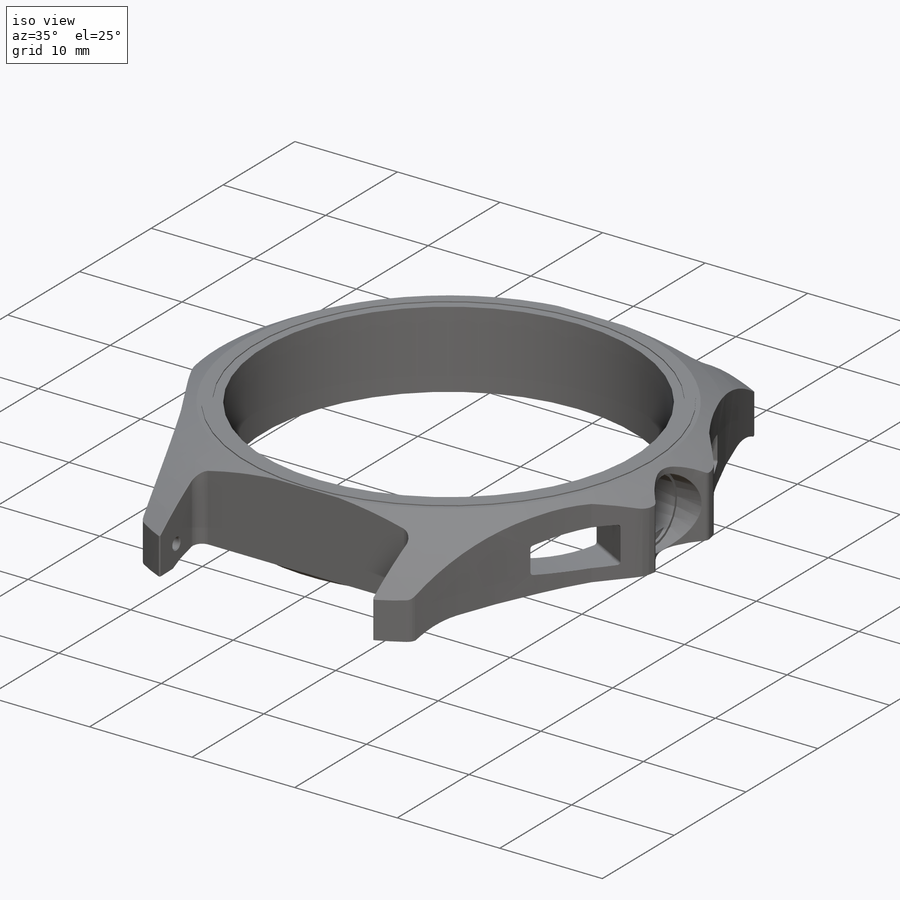
[diagram: iso view]
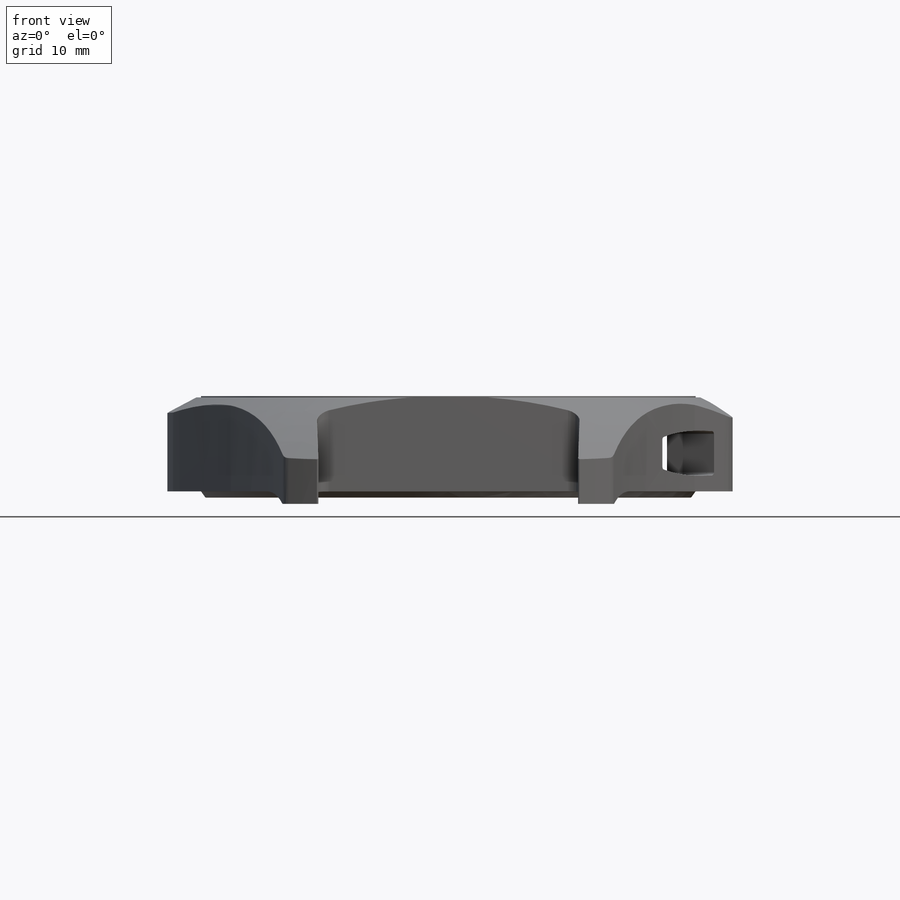
[diagram: front view]
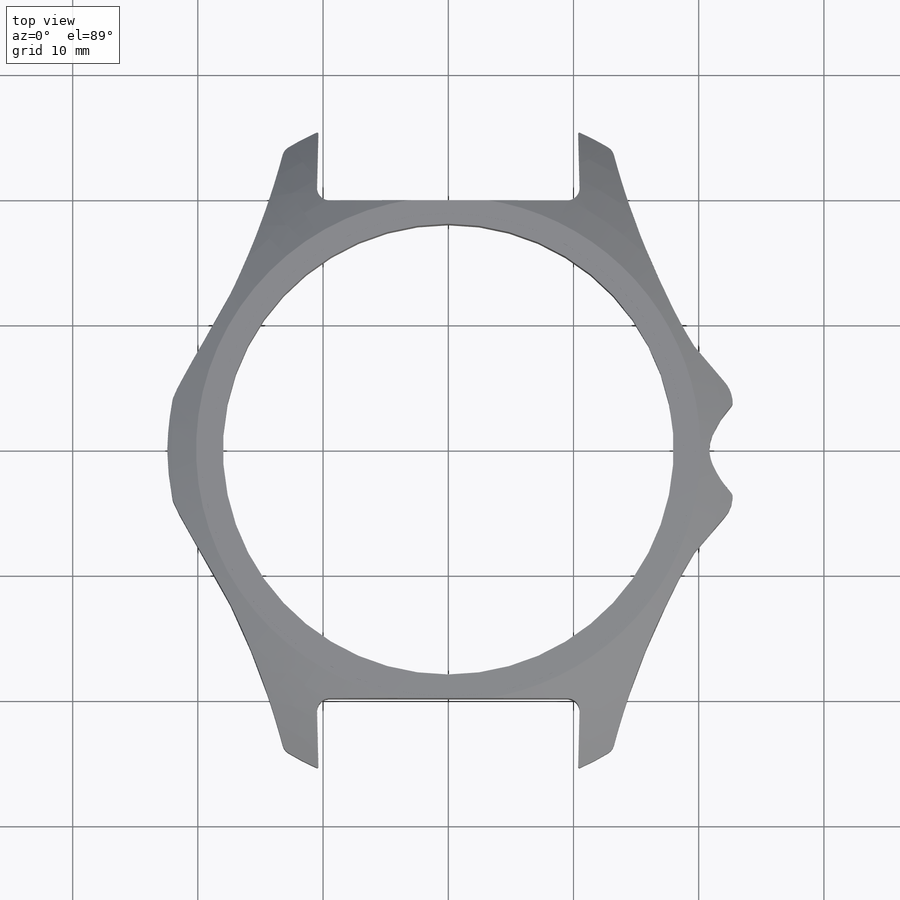
[diagram: top view]
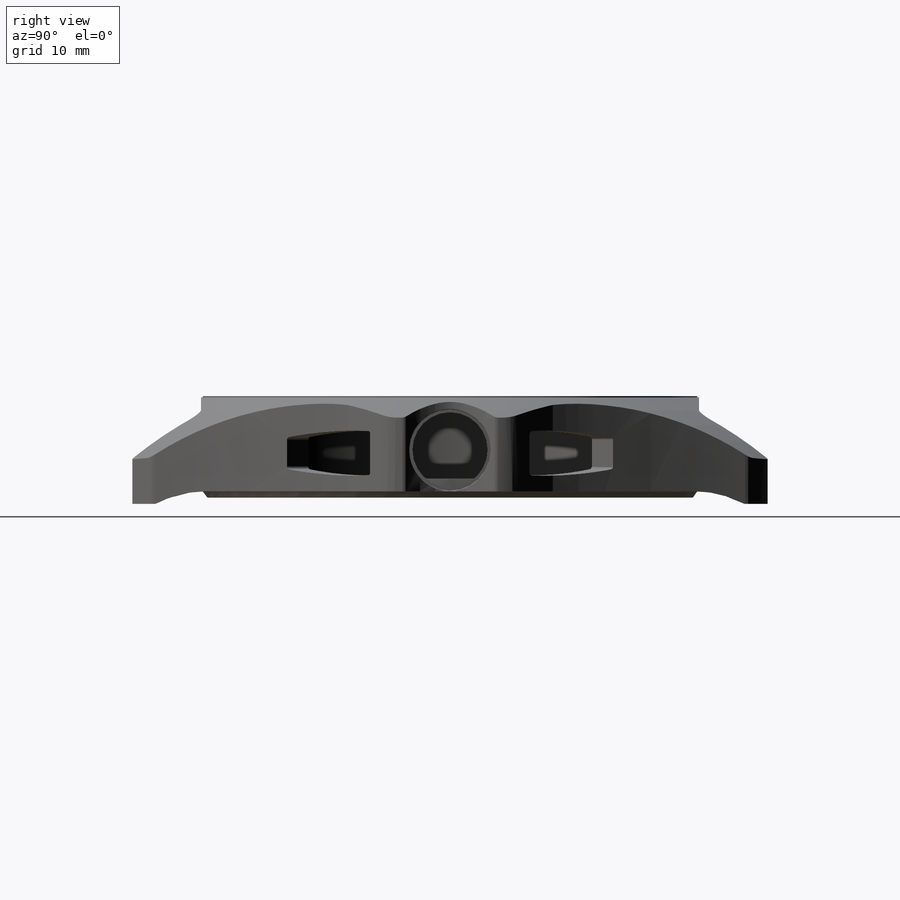
[diagram: right view]
SOLIDWORKS PART (.sldprt)
format: sldprt  version: not decoded by parser v0  size: 1,930,240 bytes
history: native  units: mm
features: sketch x15, cut_extrude x7, fillet x7, extrude x4, mirror x3, chamfer x2, material x1, cut_revolve x1, plane x1 (+11 scaffold rows collapsed)
feature tree (52):
  scaffold x11  (default folders/planes/origin — collapsed)
  material  "Material <not specified>"
  sketch  "Sketch1"  dims[c1.D1=35.0mm c1.D2=32.0mm c1.D3=0.15mm c1.D7=11.0mm c1.D8=11.8mm c1.D9=8.7mm c1.D10=11.0mm c1.D11=11.8mm c1.D12=2.0mm c1.D13=1.0mm c1.D15=28.5mm c1.D16=1.0mm c1.D17=1.0mm c1.D18=0.4mm c1.D4=3.8mm c1.D5=1.9mm c1.D6=5.0mm c2.D7=17.0mm c2.D19=0.2mm c2.D20=0.2mm c2.D6=6.0 c2.D14=6.0]
  sketch  "Sketch2"  dims[c1.D1=~4.614096mm c2.D1=~177.186387deg c3.D1=~20.738899mm]
  extrude  "Boss-Extrude1"  Depth=8.5mm
  sketch  "Sketch3"  dims[D1=36.0mm]
  cut_extrude  "Cut-Extrude1"  Depth=11mm
  sketch  "Sketch6"
  sketch  "Sketch7"  dims[D3=32.0mm D1=11.0mm D2=13.0mm D4=1.0mm D5=30.0mm]
  cut_revolve  "Cut-Revolve2"  Angle=360deg
  sketch  "Sketch8"  dims[D5=7.25mm D1=36.0mm D2=18.0mm D3=1.0mm D4=5.0mm]
  cut_extrude  "Cut-Extrude2"  Depth=60mm
  mirror  "Mirror1"
  sketch  "Sketch9"  dims[D1=6.0mm D2=4.3mm]
  cut_extrude  "Cut-Extrude3"  Depth=40mm
  sketch  "Sketch10"  dims[D1=38.0mm]
  cut_extrude  "Cut-Extrude5"  Depth=2mm
  sketch  "Sketch11"  dims[D1=39.5mm]
  extrude  "Boss-Extrude2"  Depth=1.5mm
  chamfer  "Chamfer1"  Distance=0.5mm Angle=35deg
  fillet  "Fillet1"  Radius=0.1mm
  sketch  "Sketch12"  dims[D1=0.0mm]
  extrude  "Boss-Extrude3"  Depth=1mm
  sketch  "Sketch13"
  plane  "Plane1"
  sketch  "Sketch14"
  cut_extrude  "Cut-Extrude6"  Depth=10mm
  mirror  "Mirror2"
  fillet  "Fillet2"  Radius=0.02mm
  sketch  "Sketch15"  dims[D1=39.5mm]
  extrude  "Boss-Extrude4"  Depth=0.5mm
  fillet  "Fillet3"  Radius=0.5mm
  sketch  "Sketch16"  dims[c1.D1=1.0mm c1.D2=1.0mm c1.D3=1.0mm c2.D2=2.0mm c2.D3=23.0mm]
  cut_extrude  "Cut-Extrude7"  Depth=23mm
  chamfer  "Chamfer2"  Distance=0.1mm Angle=45deg
  mirror  "Mirror4"
  sketch  "Sketch17"  dims[D1=6.5mm]
  cut_extrude  "Cut-Extrude8"  Depth=23mm
  fillet  "Fillet4"  Radius=3mm
  fillet  "Fillet5"  Radius=0.05mm
  fillet  "Fillet7"  Radius=0.1mm
  fillet  "Fillet8"  Radius=0.05mm
decode coverage: 33 of 39 modeling features carry decoded parameters
note: ~ marks probable driven/reference dimensions
note: suppression state not decoded; provenance and decode notes live in map.json
